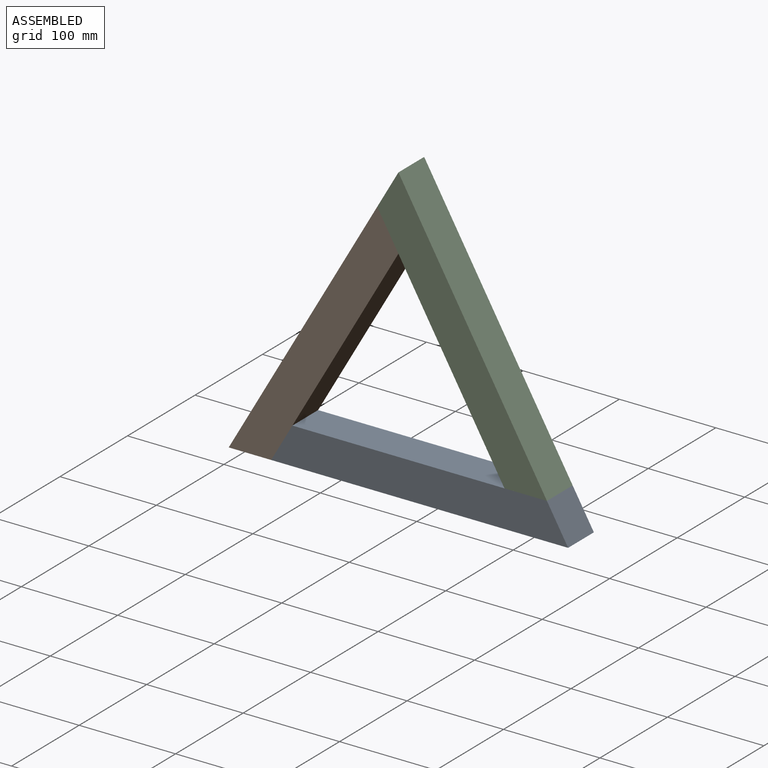
[diagram: assembled view]
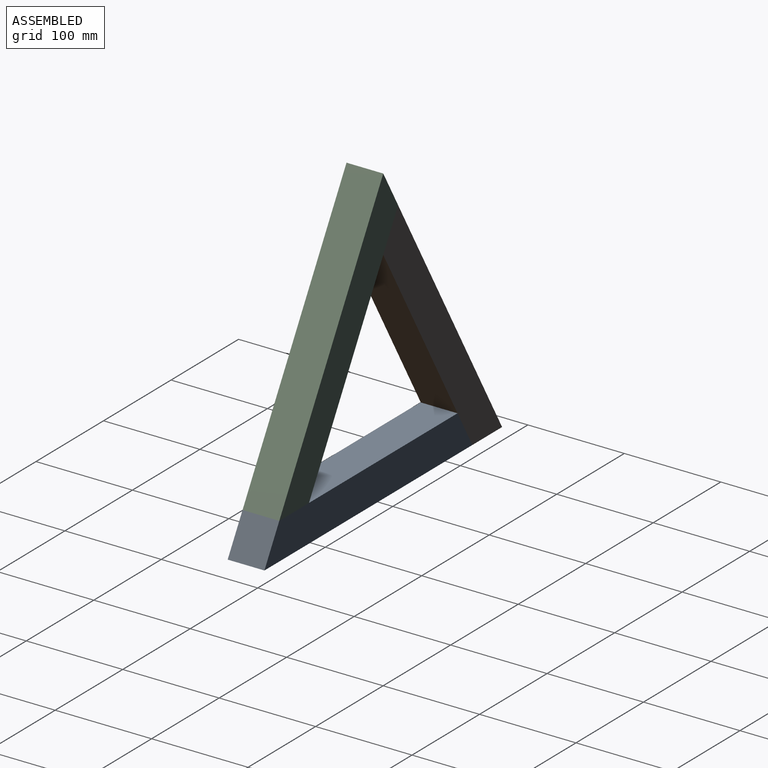
[diagram: assembled view, second angle]
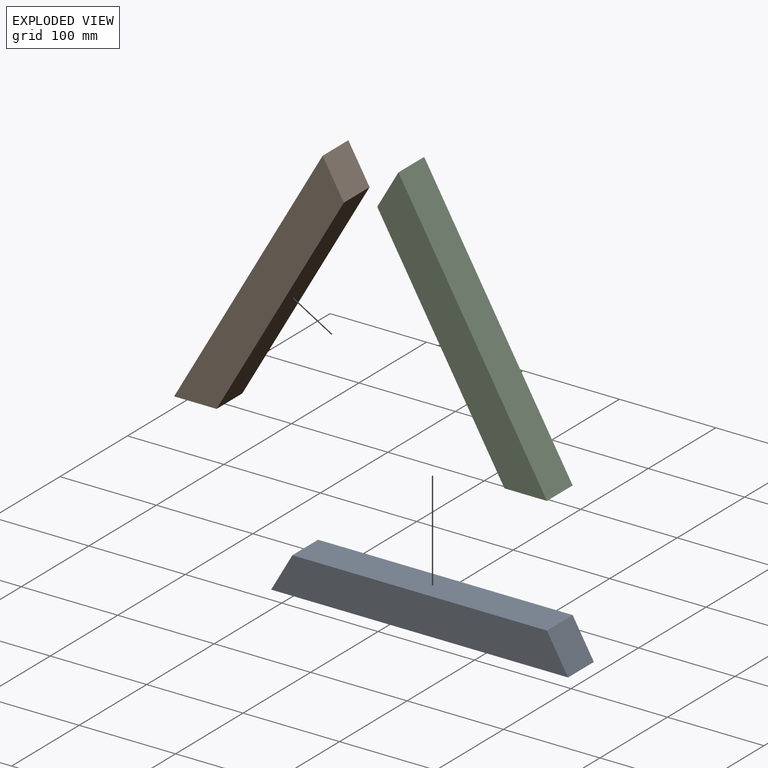
[diagram: exploded view]
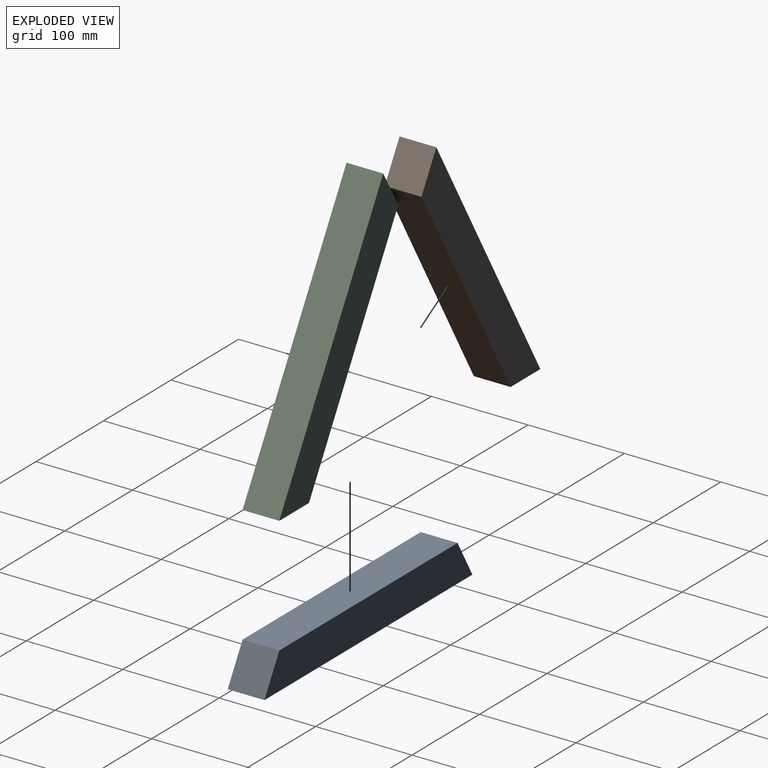
[diagram: exploded view, second angle]
ASSEMBLY  parts=3 mates=2
PART A: 6 faces, bbox 308x38.1x38.1 mm
  f0: plane 263.96x38.1mm, normal (0,0,1), area 10057mm2, adj f1,f3,f4,f5
  f1: plane 38.1x38.1mm, normal (-0.87,0,0.5), area 1676.2mm2, adj f0,f2,f4,f5
  f2: plane 307.96x38.1mm, normal (0,0,-1), area 11733.2mm2, adj f1,f3,f4,f5
  f3: plane 38.1x38.1mm, normal (0.87,0,0.5), area 1676.2mm2, adj f0,f2,f4,f5
  f4: plane 307.96x38.1mm, normal (0,-1,0), area 10895.1mm2, adj f0,f1,f2,f3
  f5: plane 307.96x38.1mm, normal (0,1,0), area 10895.1mm2, adj f0,f1,f2,f3
PART B: same geometry as A
PART C: same geometry as A
PLACE A t=(-138.17,-57.33,-154.7)mm
PLACE B rot(axis=(0,1,0),120deg) t=(-292.14,-57.33,-40.4)mm
PLACE C rot(axis=(-0.87,0,0.5),180deg) t=(-94.17,-95.43,-2.3)mm
MATE fastened C.f3 <-> A.f0  axis (0,0,-1) through (-28.18,-76.38,-116.6)mm
MATE fastened C.f1 <-> B.f2  axis (-0.87,0,0.5) through (-204.16,-76.38,112)mm
